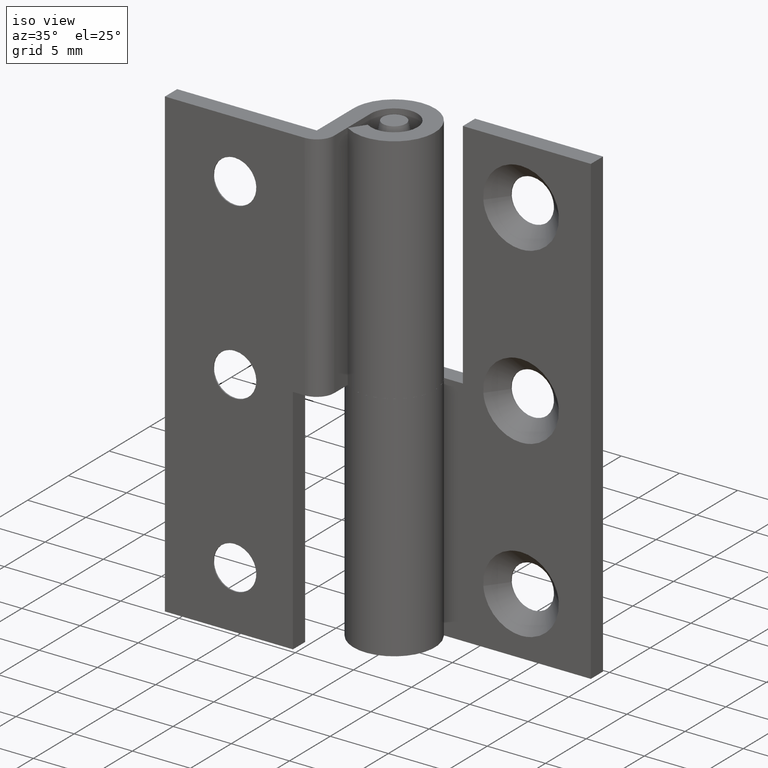
[diagram: clean part render]
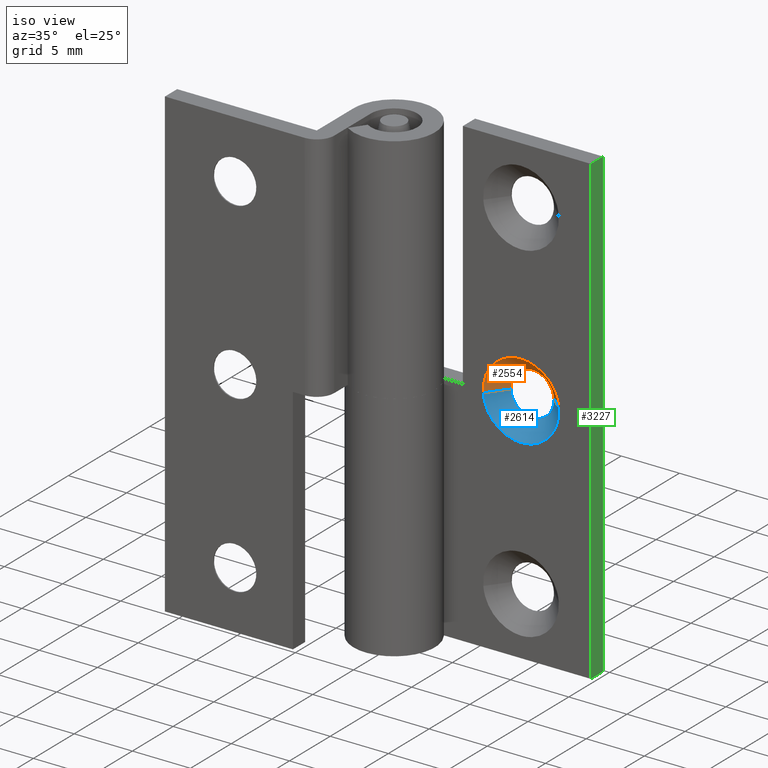
[diagram: same view with three faces highlighted in distinct colors, each labeled with its STEP entity id]
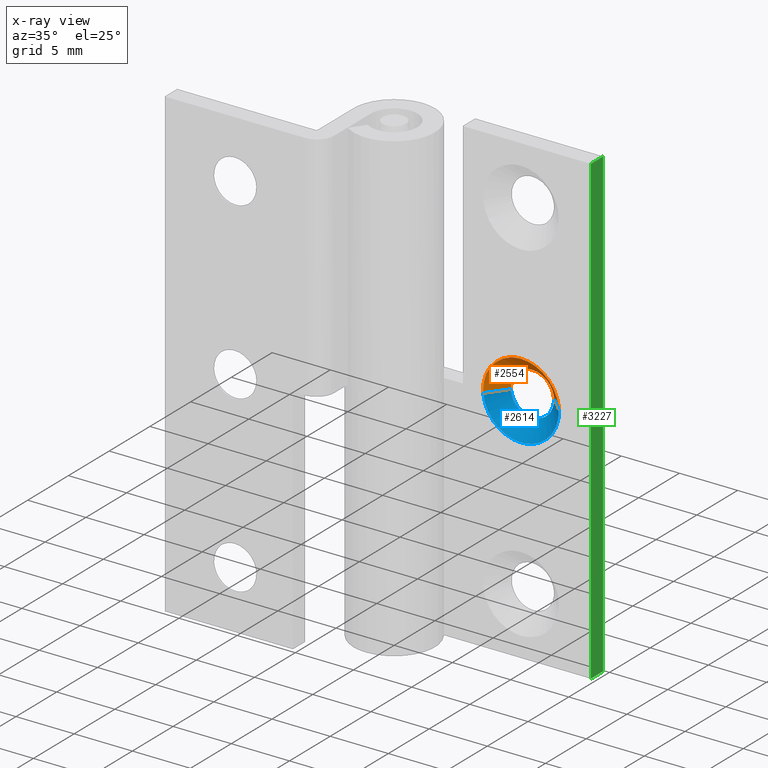
[diagram: x-ray of the same camera — body ghosted, the three highlighted faces saturated]
A machine part, iso view with three faces highlighted in distinct colors.
The next image is the same camera in x-ray (body ghosted, the three faces saturated) — at least one of them is partly hidden behind the body in this view.
Their STEP definitions:

[orange] entity #2554 — the highlighted face is a freeform B-spline surface patch.
#2359=CARTESIAN_POINT('',(7.653450613328111,3.399999999999738,19.887060358679310));
#2360=VERTEX_POINT('',#2359);
#2404=CARTESIAN_POINT('',(11.344297067423939,3.399999999955385,20.145149327440830));
#2405=VERTEX_POINT('',#2404);
#2421=CARTESIAN_POINT('',(9.500000000000000,3.400000000000000,21.850000000000001));
#2422=VERTEX_POINT('',#2421);
#2423=CARTESIAN_POINT('',(9.500000000000000,3.400000000000000,21.850000000000001));
#2424=CARTESIAN_POINT('',(11.210122408933687,3.400000000000001,21.850000000000001));
#2425=CARTESIAN_POINT('',(11.344297067423943,3.399999999955385,20.145149327440826));
#2433=(BOUNDED_CURVE()B_SPLINE_CURVE(2,(#2423,#2424,#2425),.UNSPECIFIED.,.F.,.U.)B_SPLINE_CURVE_WITH_KNOTS((3,3),(0.0,0.236331300569411),.UNSPECIFIED.)CURVE()GEOMETRIC_REPRESENTATION_ITEM()RATIONAL_B_SPLINE_CURVE((1.0,0.723120658679423,0.969723356039596))REPRESENTATION_ITEM(''));
#2434=EDGE_CURVE('',#2422,#2405,#2433,.T.);
#2436=CARTESIAN_POINT('',(7.653450613328111,3.399999999999737,19.887060358679307));
#2437=CARTESIAN_POINT('',(7.650000000000000,3.400000000000000,19.943477466526858));
#2438=CARTESIAN_POINT('',(7.650000000000000,3.400000000000000,20.0));
#2439=CARTESIAN_POINT('',(7.650000000000000,3.400000000000001,21.850000000000009));
#2440=CARTESIAN_POINT('',(9.500000000000000,3.400000000000000,21.850000000000001));
#2448=(BOUNDED_CURVE()B_SPLINE_CURVE(2,(#2436,#2437,#2438,#2439,#2440),.UNSPECIFIED.,.F.,.U.)B_SPLINE_CURVE_WITH_KNOTS((3,2,3),(0.739332976895559,0.750000000000000,1.0),.UNSPECIFIED.)CURVE()GEOMETRIC_REPRESENTATION_ITEM()RATIONAL_B_SPLINE_CURVE((0.976072073078639,0.987502805071132,1.0,0.707106781186548,1.0))REPRESENTATION_ITEM(''));
#2449=EDGE_CURVE('',#2360,#2422,#2448,.T.);
#2488=CARTESIAN_POINT('',(11.309404960725630,3.435000000000001,20.142403258746040));
#2489=CARTESIAN_POINT('',(11.167001701979586,3.435000000000000,21.951808219471669));
#2490=CARTESIAN_POINT('',(9.357596741253961,3.435000000000001,21.809404960725630));
#2491=CARTESIAN_POINT('',(7.548191780528335,3.435000000000000,21.667001701979583));
#2492=CARTESIAN_POINT('',(7.690595039274374,3.435000000000001,19.857596741253960));
#2493=CARTESIAN_POINT('',(12.775745743980339,1.964125000000000,20.257806781174740));
#2494=CARTESIAN_POINT('',(12.517938962805607,1.964125000000000,23.533552525155070));
#2495=CARTESIAN_POINT('',(9.242193218825266,1.964125000000000,23.275745743980341));
#2496=CARTESIAN_POINT('',(5.966447474844926,1.964125000000000,23.017938962805601));
#2497=CARTESIAN_POINT('',(6.224254256019660,1.964125000000000,19.742193218825260));
#2505=(BOUNDED_SURFACE()B_SPLINE_SURFACE(2,1,((#2488,#2493),(#2489,#2494),(#2490,#2495),(#2491,#2496),(#2492,#2497)),.UNSPECIFIED.,.F.,.F.,.U.)B_SPLINE_SURFACE_WITH_KNOTS((3,2,3),(2,2),(0.0,5.444215957050778,10.888431914101560),(0.0,2.080131373555527),.UNSPECIFIED.)GEOMETRIC_REPRESENTATION_ITEM()RATIONAL_B_SPLINE_SURFACE(((1.0,1.0),(0.707106781186548,0.707106781186548),(1.0,1.0),(0.707106781186548,0.707106781186548),(1.0,1.0)))REPRESENTATION_ITEM('')SURFACE());
#2506=ORIENTED_EDGE('',*,*,#2434,.T.);
#2507=CARTESIAN_POINT('',(12.739981334637109,1.999999999988912,20.254992061200319));
#2508=VERTEX_POINT('',#2507);
#2509=CARTESIAN_POINT('',(11.344297067423939,3.399999999955385,20.145149327440830));
#2510=CARTESIAN_POINT('',(12.739981334637109,1.999999999988912,20.254992061200319));
#2511=QUASI_UNIFORM_CURVE('',1,(#2509,#2510),.UNSPECIFIED.,.F.,.U.);
#2512=EDGE_CURVE('',#2405,#2508,#2511,.T.);
#2513=ORIENTED_EDGE('',*,*,#2512,.T.);
#2514=CARTESIAN_POINT('',(9.500000000000000,2.0,23.250000000000000));
#2515=VERTEX_POINT('',#2514);
#2516=CARTESIAN_POINT('',(9.500000000000000,2.0,23.250000000000000));
#2517=CARTESIAN_POINT('',(12.504269097733005,2.0,23.250000000000007));
#2518=CARTESIAN_POINT('',(12.739981334637108,1.999999999988912,20.254992061200323));
#2526=(BOUNDED_CURVE()B_SPLINE_CURVE(2,(#2516,#2517,#2518),.UNSPECIFIED.,.F.,.U.)B_SPLINE_CURVE_WITH_KNOTS((3,3),(0.0,0.236331300623883),.UNSPECIFIED.)CURVE()GEOMETRIC_REPRESENTATION_ITEM()RATIONAL_B_SPLINE_CURVE((1.0,0.723120658615604,0.969723356153276))REPRESENTATION_ITEM(''));
#2527=EDGE_CURVE('',#2515,#2508,#2526,.T.);
#2528=ORIENTED_EDGE('',*,*,#2527,.F.);
#2529=CARTESIAN_POINT('',(6.260018665362887,1.999999999988912,19.745007938799681));
#2530=VERTEX_POINT('',#2529);
#2531=CARTESIAN_POINT('',(6.260018665362887,1.999999999988911,19.745007938799684));
#2532=CARTESIAN_POINT('',(6.250000000000002,2.000000000000000,19.872307152140731));
#2533=CARTESIAN_POINT('',(6.250000000000000,2.0,20.0));
#2534=CARTESIAN_POINT('',(6.249999999999999,2.0,23.250000000000004));
#2535=CARTESIAN_POINT('',(9.500000000000000,2.0,23.250000000000000));
#2543=(BOUNDED_CURVE()B_SPLINE_CURVE(2,(#2531,#2532,#2533,#2534,#2535),.UNSPECIFIED.,.F.,.U.)B_SPLINE_CURVE_WITH_KNOTS((3,2,3),(0.736331300623884,0.750000000000000,1.0),.UNSPECIFIED.)CURVE()GEOMETRIC_REPRESENTATION_ITEM()RATIONAL_B_SPLINE_CURVE((0.969723356153277,0.983986122570943,1.0,0.707106781186547,1.0))REPRESENTATION_ITEM(''));
#2544=EDGE_CURVE('',#2530,#2515,#2543,.T.);
#2545=ORIENTED_EDGE('',*,*,#2544,.F.);
#2546=CARTESIAN_POINT('',(7.653450613328111,3.399999999999738,19.887060358679310));
#2547=CARTESIAN_POINT('',(6.260018665362887,1.999999999988912,19.745007938799681));
#2548=QUASI_UNIFORM_CURVE('',1,(#2546,#2547),.UNSPECIFIED.,.F.,.U.);
#2549=EDGE_CURVE('',#2360,#2530,#2548,.T.);
#2550=ORIENTED_EDGE('',*,*,#2549,.F.);
#2551=ORIENTED_EDGE('',*,*,#2449,.T.);
#2552=EDGE_LOOP('',(#2506,#2513,#2528,#2545,#2550,#2551));
#2553=FACE_OUTER_BOUND('',#2552,.T.);
#2554=ADVANCED_FACE('',(#2553),#2505,.F.);

[blue] entity #2614 — the highlighted face is a freeform B-spline surface patch.
#2305=CARTESIAN_POINT('',(11.337918007855111,3.400000000000000,19.788913770221949));
#2306=VERTEX_POINT('',#2305);
#2307=CARTESIAN_POINT('',(9.500000000000000,3.400000000000000,18.149999999999999));
#2308=VERTEX_POINT('',#2307);
#2309=CARTESIAN_POINT('',(11.337918007855111,3.400000000000000,19.788913770221956));
#2310=CARTESIAN_POINT('',(11.149687560564852,3.400000000000002,18.150000000000002));
#2311=CARTESIAN_POINT('',(9.500000000000000,3.400000000000000,18.149999999999999));
#2319=(BOUNDED_CURVE()B_SPLINE_CURVE(2,(#2309,#2310,#2311),.UNSPECIFIED.,.F.,.U.)B_SPLINE_CURVE_WITH_KNOTS((3,3),(0.269767755878152,0.500000000000000),.UNSPECIFIED.)CURVE()GEOMETRIC_REPRESENTATION_ITEM()RATIONAL_B_SPLINE_CURVE((0.957343736457620,0.730266147778030,1.0))REPRESENTATION_ITEM(''));
#2320=EDGE_CURVE('',#2306,#2308,#2319,.T.);
#2359=CARTESIAN_POINT('',(7.653450613328111,3.399999999999738,19.887060358679310));
#2360=VERTEX_POINT('',#2359);
#2366=CARTESIAN_POINT('',(9.500000000000000,3.400000000000000,18.149999999999999));
#2367=CARTESIAN_POINT('',(7.759693628152214,3.400000000000000,18.149999999999991));
#2368=CARTESIAN_POINT('',(7.653450613328111,3.399999999999738,19.887060358679310));
#2376=(BOUNDED_CURVE()B_SPLINE_CURVE(2,(#2366,#2367,#2368),.UNSPECIFIED.,.F.,.U.)B_SPLINE_CURVE_WITH_KNOTS((3,3),(0.500000000000000,0.739332976895560),.UNSPECIFIED.)CURVE()GEOMETRIC_REPRESENTATION_ITEM()RATIONAL_B_SPLINE_CURVE((1.0,0.719603976115416,0.976072073078639))REPRESENTATION_ITEM(''));
#2377=EDGE_CURVE('',#2308,#2360,#2376,.T.);
#2404=CARTESIAN_POINT('',(11.344297067423939,3.399999999955385,20.145149327440830));
#2405=VERTEX_POINT('',#2404);
#2406=CARTESIAN_POINT('',(11.344297067423943,3.399999999955385,20.145149327440826));
#2407=CARTESIAN_POINT('',(11.350000000000000,3.400000000000000,20.072686698306587));
#2408=CARTESIAN_POINT('',(11.350000000000000,3.400000000000000,20.0));
#2409=CARTESIAN_POINT('',(11.349999999999996,3.400000000000000,19.894111115194750));
#2410=CARTESIAN_POINT('',(11.337918007855109,3.400000000000000,19.788913770221949));
#2418=(BOUNDED_CURVE()B_SPLINE_CURVE(2,(#2406,#2407,#2408,#2409,#2410),.UNSPECIFIED.,.F.,.U.)B_SPLINE_CURVE_WITH_KNOTS((3,2,3),(0.236331300569411,0.250000000000000,0.269767755878152),.UNSPECIFIED.)CURVE()GEOMETRIC_REPRESENTATION_ITEM()RATIONAL_B_SPLINE_CURVE((0.969723356039596,0.983986122507124,1.0,0.976840633408518,0.957343736457620))REPRESENTATION_ITEM(''));
#2419=EDGE_CURVE('',#2405,#2306,#2418,.T.);
#2507=CARTESIAN_POINT('',(12.739981334637109,1.999999999988912,20.254992061200319));
#2508=VERTEX_POINT('',#2507);
#2509=CARTESIAN_POINT('',(11.344297067423939,3.399999999955385,20.145149327440830));
#2510=CARTESIAN_POINT('',(12.739981334637109,1.999999999988912,20.254992061200319));
#2511=QUASI_UNIFORM_CURVE('',1,(#2509,#2510),.UNSPECIFIED.,.F.,.U.);
#2512=EDGE_CURVE('',#2405,#2508,#2511,.T.);
#2529=CARTESIAN_POINT('',(6.260018665362887,1.999999999988912,19.745007938799681));
#2530=VERTEX_POINT('',#2529);
#2546=CARTESIAN_POINT('',(7.653450613328111,3.399999999999738,19.887060358679310));
#2547=CARTESIAN_POINT('',(6.260018665362887,1.999999999988912,19.745007938799681));
#2548=QUASI_UNIFORM_CURVE('',1,(#2546,#2547),.UNSPECIFIED.,.F.,.U.);
#2549=EDGE_CURVE('',#2360,#2530,#2548,.T.);
#2555=CARTESIAN_POINT('',(7.686141688911437,3.435000000000001,19.914181922727380));
#2556=CARTESIAN_POINT('',(7.688353848321643,3.435000000000001,19.886073772352223));
#2557=CARTESIAN_POINT('',(7.832998298020414,3.435000000000000,18.048191780528342));
#2558=CARTESIAN_POINT('',(9.642403258746040,3.435000000000001,18.190595039274370));
#2559=CARTESIAN_POINT('',(11.451808219471665,3.435000000000000,18.332998298020414));
#2560=CARTESIAN_POINT('',(11.308394780939672,3.434999999999999,20.155238809926630));
#2561=CARTESIAN_POINT('',(11.307390520278492,3.435000000000003,20.167999151496229));
#2562=CARTESIAN_POINT('',(6.216191912976234,1.964125000000000,19.844635000188326));
#2563=CARTESIAN_POINT('',(6.220196805153652,1.964125000000000,19.793748020235743));
#2564=CARTESIAN_POINT('',(6.482061037194394,1.964125000000000,16.466447474844927));
#2565=CARTESIAN_POINT('',(9.757806781174734,1.964125000000000,16.724254256019659));
#2566=CARTESIAN_POINT('',(13.033552525155075,1.964125000000000,16.982061037194391));
#2567=CARTESIAN_POINT('',(12.773916915052435,1.964125000000000,20.281044255960158));
#2568=CARTESIAN_POINT('',(12.772098802104731,1.964125000000001,20.304145571307245));
#2576=(BOUNDED_SURFACE()B_SPLINE_SURFACE(2,1,((#2555,#2562),(#2556,#2563),(#2557,#2564),(#2558,#2565),(#2559,#2566),(#2560,#2567),(#2561,#2568)),.UNSPECIFIED.,.F.,.F.,.U.)B_SPLINE_SURFACE_WITH_KNOTS((3,1,2,1,3),(2,2),(0.0,0.121969073237597,5.566185030288367,11.010400987339141,11.065179101200570),(0.0,2.080639897683308),.UNSPECIFIED.)GEOMETRIC_REPRESENTATION_ITEM()RATIONAL_B_SPLINE_SURFACE(((1.013123621376550,1.013123621376550),(1.006561810688275,1.006561810688275),(0.707106781186548,0.707106781186548),(1.0,1.0),(0.707106781186548,0.707106781186548),(1.002947006183439,1.002947006183439),(1.005894012366877,1.005894012366877)))REPRESENTATION_ITEM('')SURFACE());
#2577=ORIENTED_EDGE('',*,*,#2419,.T.);
#2578=ORIENTED_EDGE('',*,*,#2320,.T.);
#2579=ORIENTED_EDGE('',*,*,#2377,.T.);
#2580=ORIENTED_EDGE('',*,*,#2549,.T.);
#2581=CARTESIAN_POINT('',(9.500000000000000,2.0,16.750000000000000));
#2582=VERTEX_POINT('',#2581);
#2583=CARTESIAN_POINT('',(9.500000000000000,2.0,16.750000000000000));
#2584=CARTESIAN_POINT('',(6.495730902266979,2.000000000000000,16.750000000000007));
#2585=CARTESIAN_POINT('',(6.260018665362888,1.999999999988912,19.745007938799681));
#2593=(BOUNDED_CURVE()B_SPLINE_CURVE(2,(#2583,#2584,#2585),.UNSPECIFIED.,.F.,.U.)B_SPLINE_CURVE_WITH_KNOTS((3,3),(0.500000000000000,0.736331300623884),.UNSPECIFIED.)CURVE()GEOMETRIC_REPRESENTATION_ITEM()RATIONAL_B_SPLINE_CURVE((1.0,0.723120658615603,0.969723356153278))REPRESENTATION_ITEM(''));
#2594=EDGE_CURVE('',#2582,#2530,#2593,.T.);
#2595=ORIENTED_EDGE('',*,*,#2594,.F.);
#2596=CARTESIAN_POINT('',(12.739981334637115,1.999999999988912,20.254992061200316));
#2597=CARTESIAN_POINT('',(12.750000000000004,2.000000000000000,20.127692847859272));
#2598=CARTESIAN_POINT('',(12.750000000000000,2.0,20.0));
#2599=CARTESIAN_POINT('',(12.750000000000002,2.0,16.750000000000000));
#2600=CARTESIAN_POINT('',(9.500000000000000,2.0,16.750000000000000));
#2608=(BOUNDED_CURVE()B_SPLINE_CURVE(2,(#2596,#2597,#2598,#2599,#2600),.UNSPECIFIED.,.F.,.U.)B_SPLINE_CURVE_WITH_KNOTS((3,2,3),(0.236331300623883,0.250000000000000,0.500000000000000),.UNSPECIFIED.)CURVE()GEOMETRIC_REPRESENTATION_ITEM()RATIONAL_B_SPLINE_CURVE((0.969723356153276,0.983986122570943,1.0,0.707106781186547,1.0))REPRESENTATION_ITEM(''));
#2609=EDGE_CURVE('',#2508,#2582,#2608,.T.);
#2610=ORIENTED_EDGE('',*,*,#2609,.F.);
#2611=ORIENTED_EDGE('',*,*,#2512,.F.);
#2612=EDGE_LOOP('',(#2577,#2578,#2579,#2580,#2595,#2610,#2611));
#2613=FACE_OUTER_BOUND('',#2612,.T.);
#2614=ADVANCED_FACE('',(#2613),#2576,.F.);

[green] entity #3227 — the highlighted face is a freeform B-spline surface patch.
#3077=CARTESIAN_POINT('',(15.500000000000000,3.500000000000000,0.0));
#3078=VERTEX_POINT('',#3077);
#3084=CARTESIAN_POINT('',(15.500000000000000,2.0,0.0));
#3085=VERTEX_POINT('',#3084);
#3086=CARTESIAN_POINT('',(15.500000000000000,3.500000000000000,0.0));
#3087=CARTESIAN_POINT('',(15.500000000000000,2.0,0.0));
#3088=QUASI_UNIFORM_CURVE('',1,(#3086,#3087),.UNSPECIFIED.,.F.,.U.);
#3089=EDGE_CURVE('',#3078,#3085,#3088,.T.);
#3132=CARTESIAN_POINT('',(15.500000000000000,3.500000000000000,40.0));
#3133=VERTEX_POINT('',#3132);
#3140=CARTESIAN_POINT('',(15.500000000000000,2.0,40.0));
#3141=VERTEX_POINT('',#3140);
#3147=CARTESIAN_POINT('',(15.500000000000000,3.500000000000000,40.0));
#3148=CARTESIAN_POINT('',(15.500000000000000,2.0,40.0));
#3149=QUASI_UNIFORM_CURVE('',1,(#3147,#3148),.UNSPECIFIED.,.F.,.U.);
#3150=EDGE_CURVE('',#3133,#3141,#3149,.T.);
#3208=CARTESIAN_POINT('',(15.500000000000000,1.925075002907291,41.997999922472239));
#3209=CARTESIAN_POINT('',(15.500000000000000,1.925075002907291,-1.998000995355844));
#3210=CARTESIAN_POINT('',(15.500000000000000,3.574925037325845,41.997999922472239));
#3211=CARTESIAN_POINT('',(15.500000000000000,3.574925037325845,-1.998000995355844));
#3212=B_SPLINE_SURFACE_WITH_KNOTS('',1,1,((#3208,#3210),(#3209,#3211)),.UNSPECIFIED.,.F.,.F.,.U.,(2,2),(2,2),(0.0,43.996000917828077),(0.041708334948495,0.958291687403247),.UNSPECIFIED.);
#3213=ORIENTED_EDGE('',*,*,#3089,.F.);
#3214=CARTESIAN_POINT('',(15.500000000000000,3.500000000000000,40.0));
#3215=CARTESIAN_POINT('',(15.500000000000000,3.500000000000000,0.0));
#3216=QUASI_UNIFORM_CURVE('',1,(#3214,#3215),.UNSPECIFIED.,.F.,.U.);
#3217=EDGE_CURVE('',#3133,#3078,#3216,.T.);
#3218=ORIENTED_EDGE('',*,*,#3217,.F.);
#3219=ORIENTED_EDGE('',*,*,#3150,.T.);
#3220=CARTESIAN_POINT('',(15.500000000000000,2.0,40.0));
#3221=CARTESIAN_POINT('',(15.500000000000000,2.0,0.0));
#3222=QUASI_UNIFORM_CURVE('',1,(#3220,#3221),.UNSPECIFIED.,.F.,.U.);
#3223=EDGE_CURVE('',#3141,#3085,#3222,.T.);
#3224=ORIENTED_EDGE('',*,*,#3223,.T.);
#3225=EDGE_LOOP('',(#3213,#3218,#3219,#3224));
#3226=FACE_OUTER_BOUND('',#3225,.T.);
#3227=ADVANCED_FACE('',(#3226),#3212,.T.);